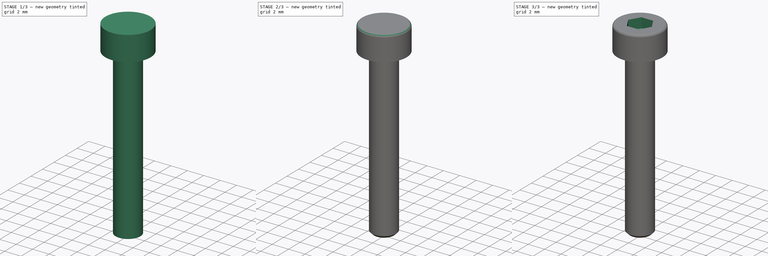
[diagram: build sequence overview — one tinted view per stage of 3, left to right]
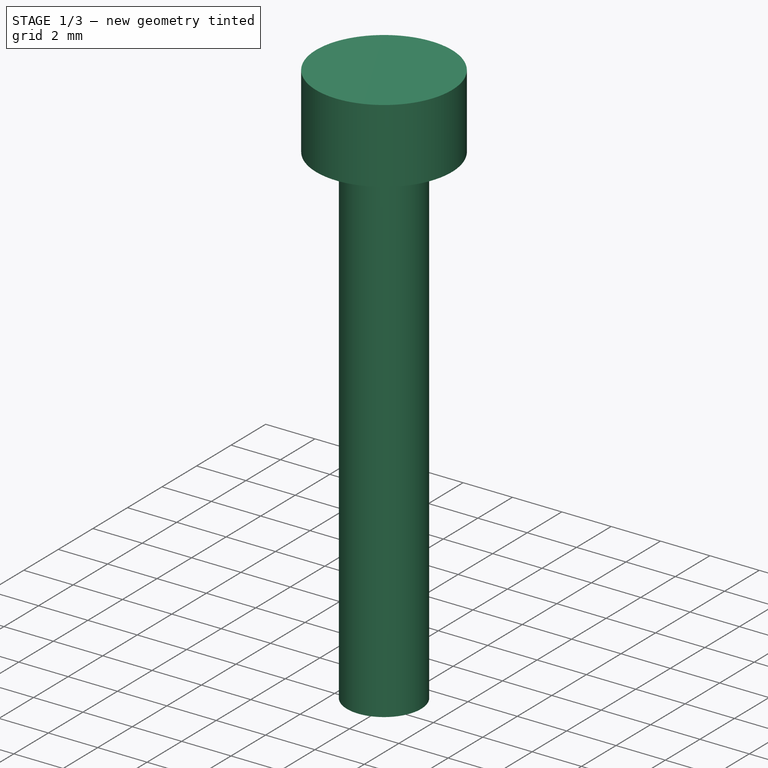
[diagram: stage 1 of 3 — iso view after this stage's code; geometry added in this stage tinted green]
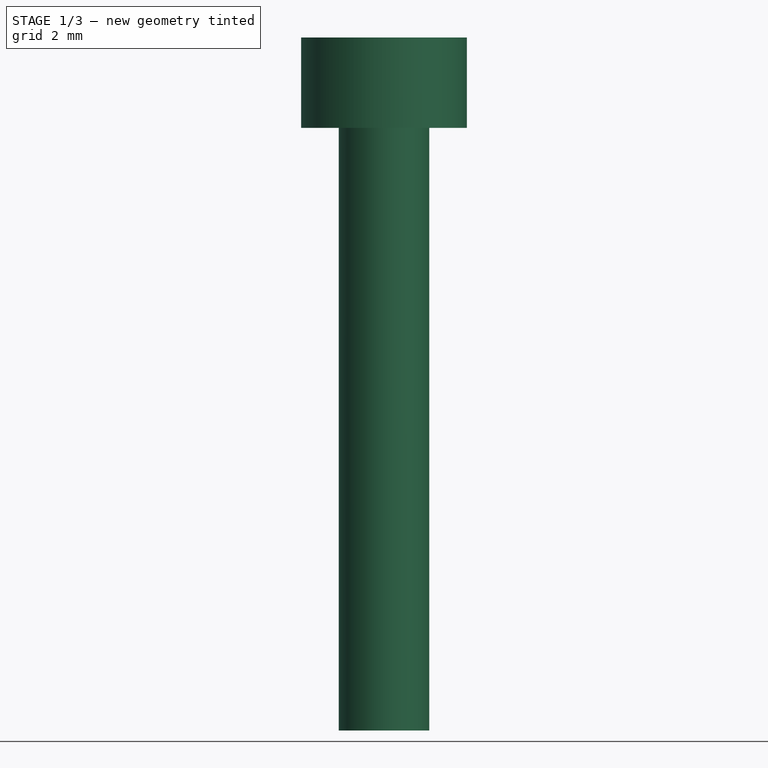
[diagram: stage 1 of 3 — front view after this stage's code; geometry added in this stage tinted green]
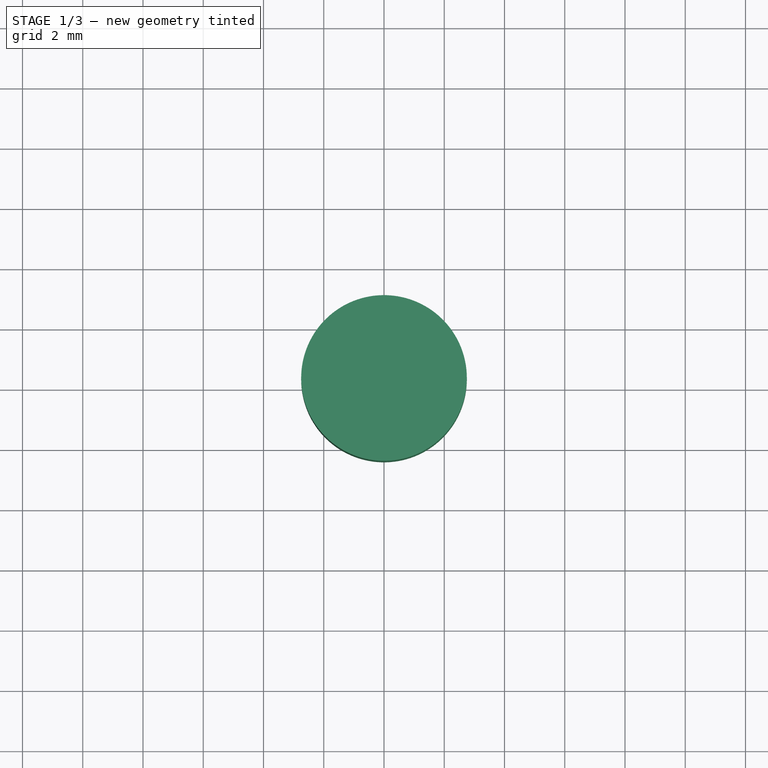
[diagram: stage 1 of 3 — top view after this stage's code; geometry added in this stage tinted green]
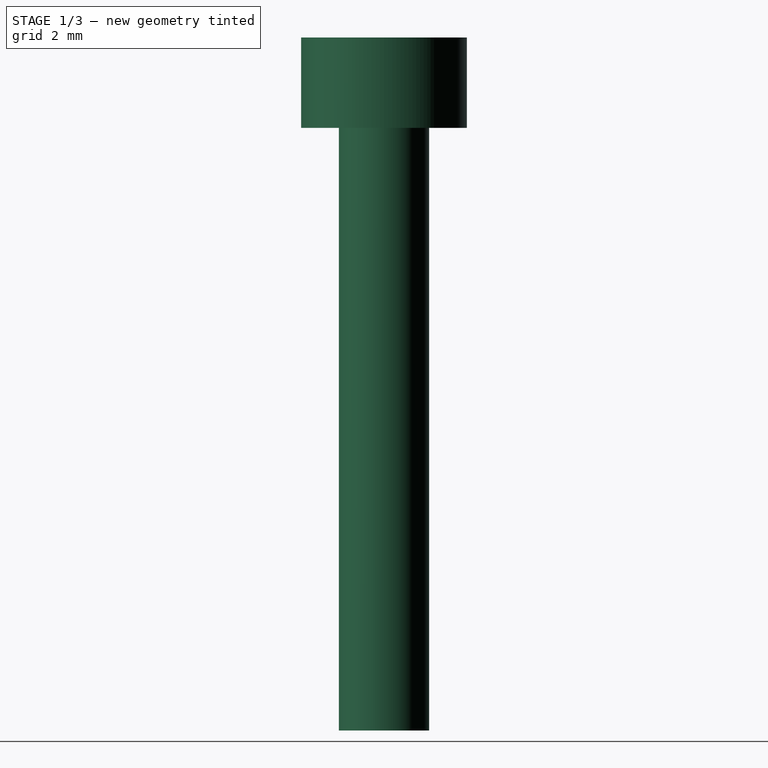
[diagram: stage 1 of 3 — right view after this stage's code; geometry added in this stage tinted green]
FCSTD DOCUMENT  (FreeCAD 0.14R3310 (Git))
Label: 70. TORNILLO METRICA 3 X 20
License: CC-BY 3.0
LicenseURL: http://creativecommons.org/licenses/by/3.0/
objects: Sketcher::SketchObject×3, PartDesign::Pad×2, PartDesign::Fillet×2, PartDesign::Chamfer×2, PartDesign::Pocket×1
note: 13 computed .brp shape members not serialized (recipe doc carries the construction recipe); baked Part::Feature solids carry a one-line shape summary decoded from their .brp

FEATURE [Sketcher::SketchObject] Sketch
  sketch-geometry (1):
    g0: Circle CenterX=0 CenterY=0 CenterZ=0 NormalX=0 NormalY=0 NormalZ=1 Radius=1.5
  constraints (2):
    c: Coincident(g0,g-1)
    c: Radius(g0) = 1.5
FEATURE [PartDesign::Pad] Pad
  Length = 20
  Length2 = 100
  Sketch = -> Sketch
  Type = 0
FEATURE [Sketcher::SketchObject] Sketch001
  Placement = pos=(0,0,20) rot=(0,0,1;0rad)
  Support = -> Pad [Face3]
  sketch-geometry (1):
    g0: Circle CenterX=0 CenterY=0 CenterZ=0 NormalX=0 NormalY=0 NormalZ=1 Radius=2.75
  constraints (2):
    c: Coincident(g0,g-1)
    c: Radius(g0) = 2.75
FEATURE [PartDesign::Pad] Pad001
  Length = 3
  Length2 = 100
  Sketch = -> Sketch001
  Type = 0
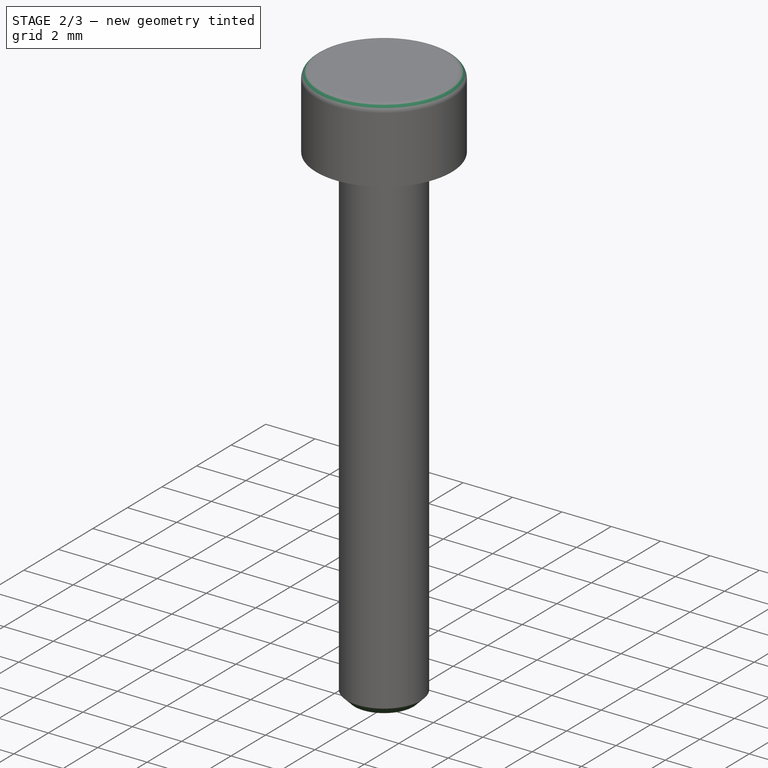
[diagram: stage 2 of 3 — iso view after this stage's code; geometry added in this stage tinted green]
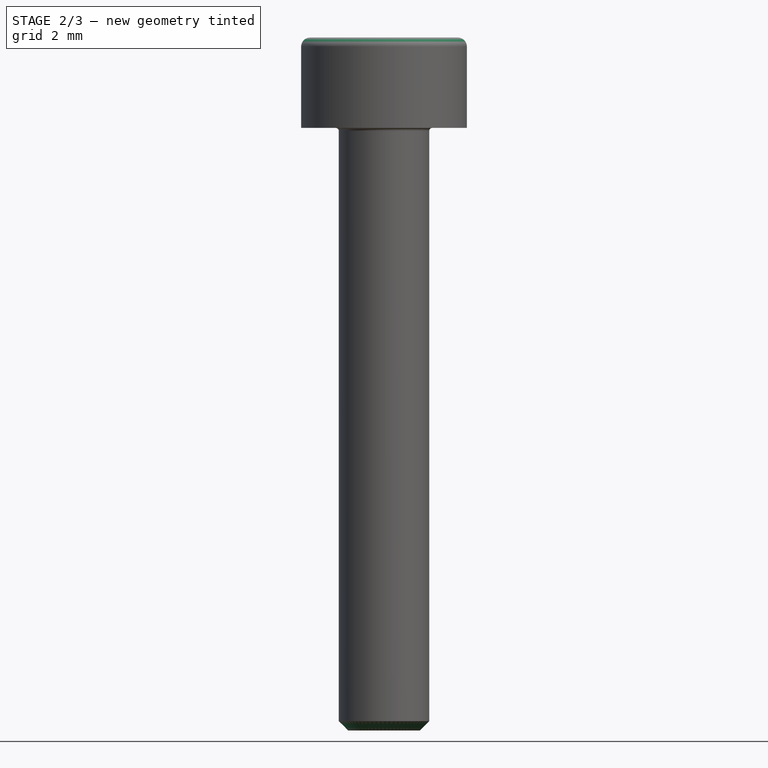
[diagram: stage 2 of 3 — front view after this stage's code; geometry added in this stage tinted green]
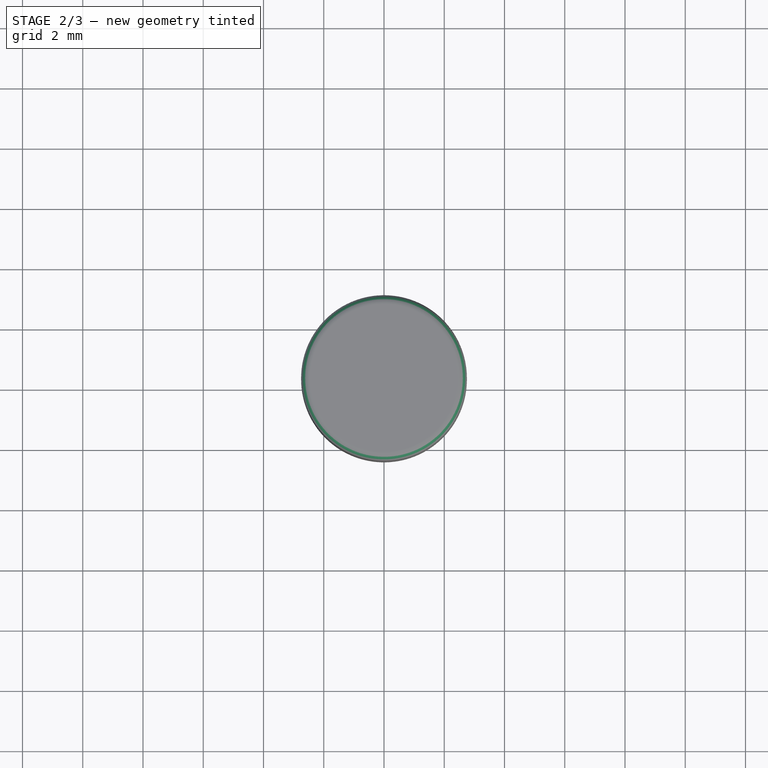
[diagram: stage 2 of 3 — top view after this stage's code; geometry added in this stage tinted green]
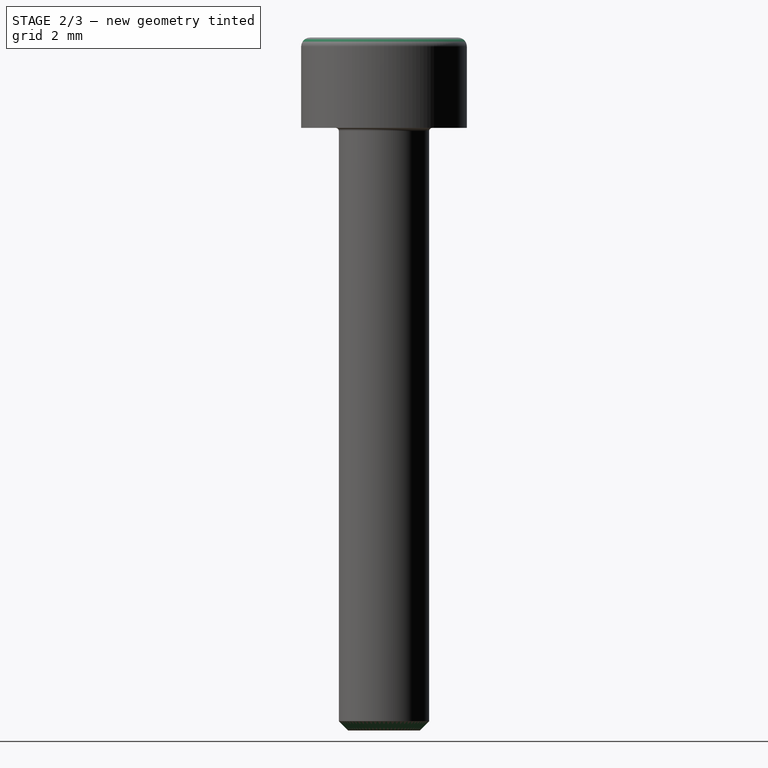
[diagram: stage 2 of 3 — right view after this stage's code; geometry added in this stage tinted green]
FEATURE [PartDesign::Fillet] Fillet
  Base = -> Pad001 [Edge3]
  Radius = 0.1
FEATURE [PartDesign::Fillet] Fillet001
  Base = -> Fillet [Edge8]
  Radius = 0.3
FEATURE [PartDesign::Chamfer] Chamfer
  Base = -> Fillet001 [Edge10]
  Size = 0.31
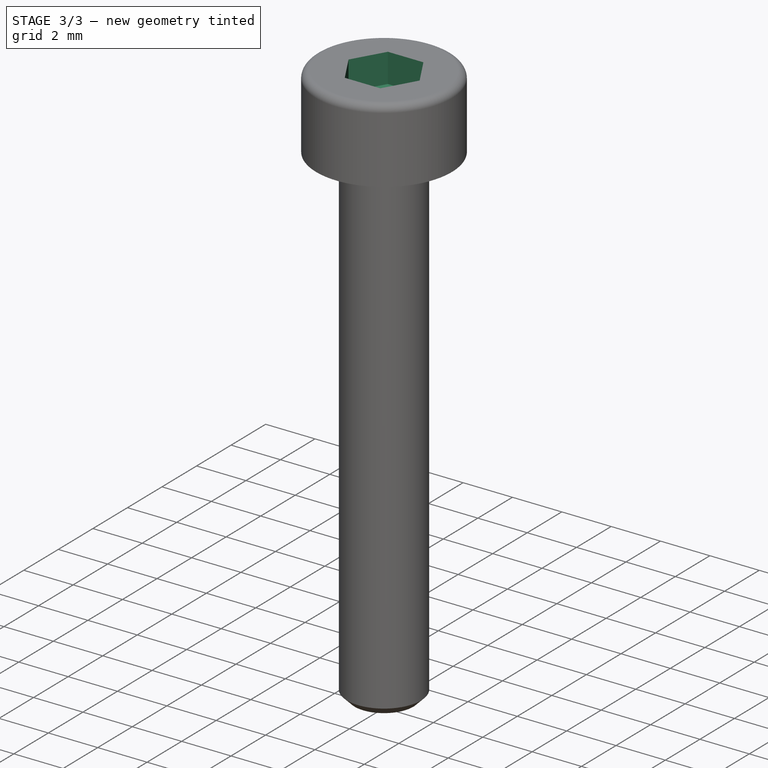
[diagram: stage 3 of 3 — iso view after this stage's code; geometry added in this stage tinted green]
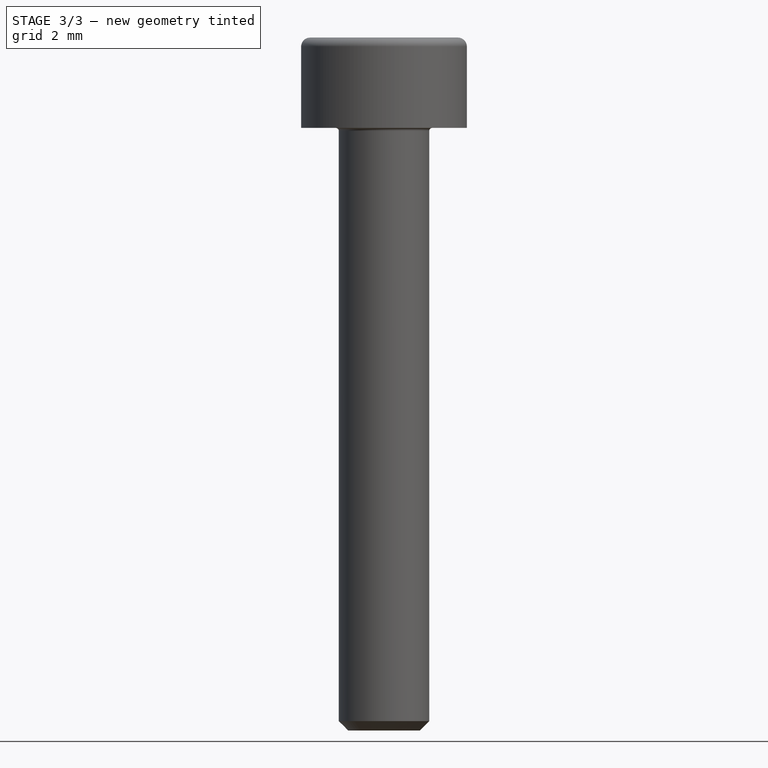
[diagram: stage 3 of 3 — front view after this stage's code; geometry added in this stage tinted green]
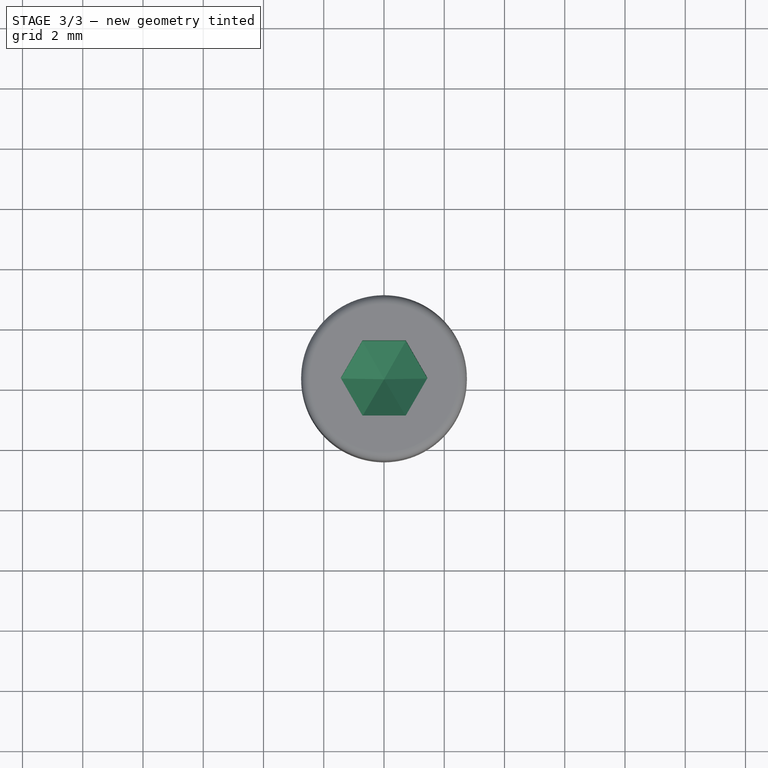
[diagram: stage 3 of 3 — top view after this stage's code; geometry added in this stage tinted green]
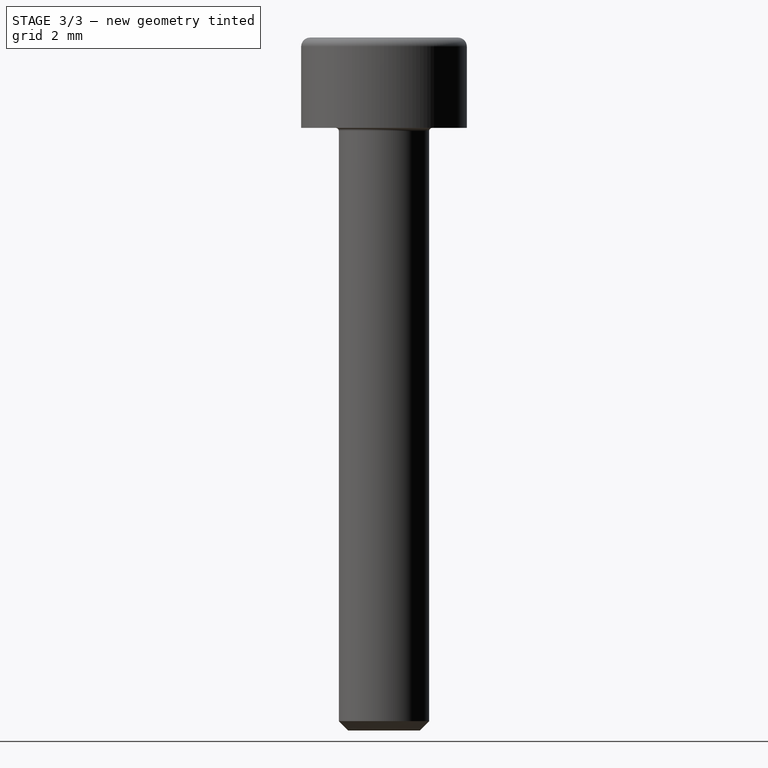
[diagram: stage 3 of 3 — right view after this stage's code; geometry added in this stage tinted green]
FEATURE [Sketcher::SketchObject] Sketch002
  Placement = pos=(0,0,23) rot=(0,0,1;0rad)
  Support = -> Chamfer [Face8]
  sketch-geometry (6):
    g0: LineSegment StartX=-0.716624 StartY=1.24708 StartZ=0 EndX=0.723376 EndY=1.24708 EndZ=0
    g1: LineSegment StartX=0.723376 StartY=1.24708 StartZ=0 EndX=1.44338 EndY=0 EndZ=0
    g2: LineSegment StartX=1.44338 StartY=0 StartZ=0 EndX=0.723376 EndY=-1.24708 EndZ=0
    g3: LineSegment StartX=0.723376 StartY=-1.24708 StartZ=0 EndX=-0.716624 EndY=-1.24708 EndZ=0
    g4: LineSegment StartX=-0.716624 StartY=-1.24708 StartZ=0 EndX=-1.43662 EndY=0 EndZ=0
    g5: LineSegment StartX=-1.43662 StartY=0 StartZ=0 EndX=-0.716624 EndY=1.24708 EndZ=0
  constraints (19):
    c: Horizontal(g0)
    c: Coincident(g0,g1)
    c: Coincident(g1,g2)
    c: Coincident(g2,g3)
    c: Horizontal(g3)
    c: Coincident(g3,g4)
    c: PointOnObject(g4,g-1)
    c: Coincident(g4,g5)
    c: Coincident(g5,g0)
    c: PointOnObject(g1,g-1)
    c: Angle(g2,g3) = 2.0944
    c: Angle(g3,g4) = 2.0944
    c: Equal(g1,g0)
    c: Equal(g0,g4)
    c: Equal(g4,g5)
    c: Equal(g5,g3)
    c: Equal(g3,g2)
    c: Distance(g1) = 1.44
    c: Distance(g-1,g2) = 1.25
FEATURE [PartDesign::Pocket] Pocket
  Length = 2.42
  Sketch = -> Sketch002
  Type = 0
FEATURE [PartDesign::Chamfer] Chamfer001
  Base = -> Pocket [Edge24,Edge26,Edge28,Edge30,Edge20,Edge22]
  Size = 1.24
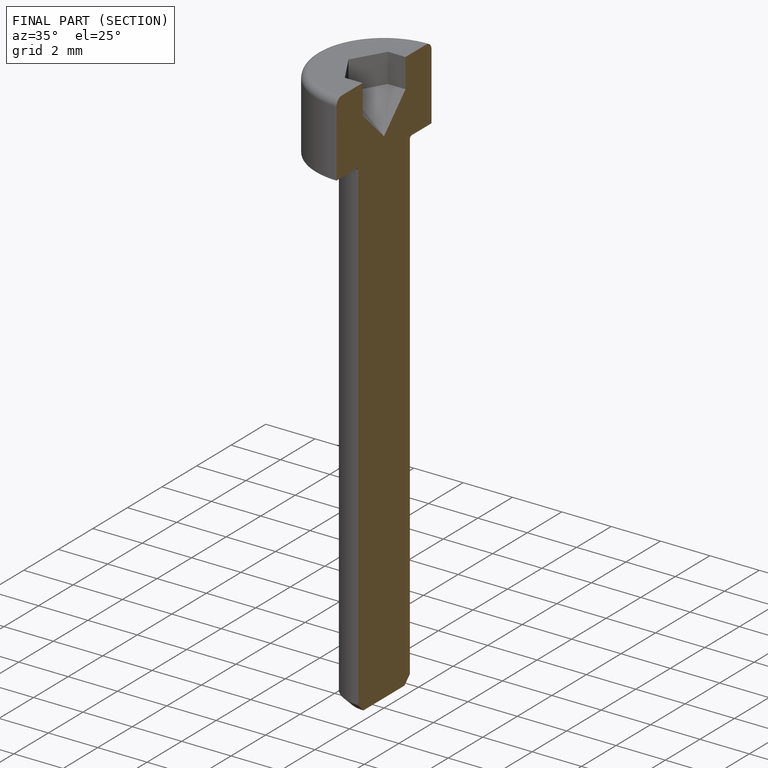
[diagram: finished part — half-section view (interior)]
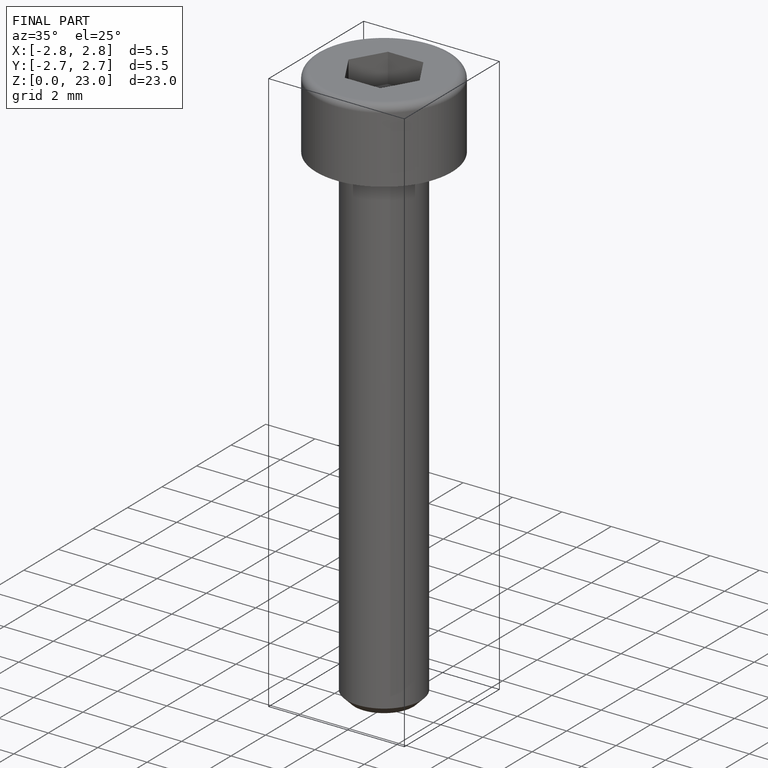
[diagram: finished part — iso view with bounding-box wireframe]
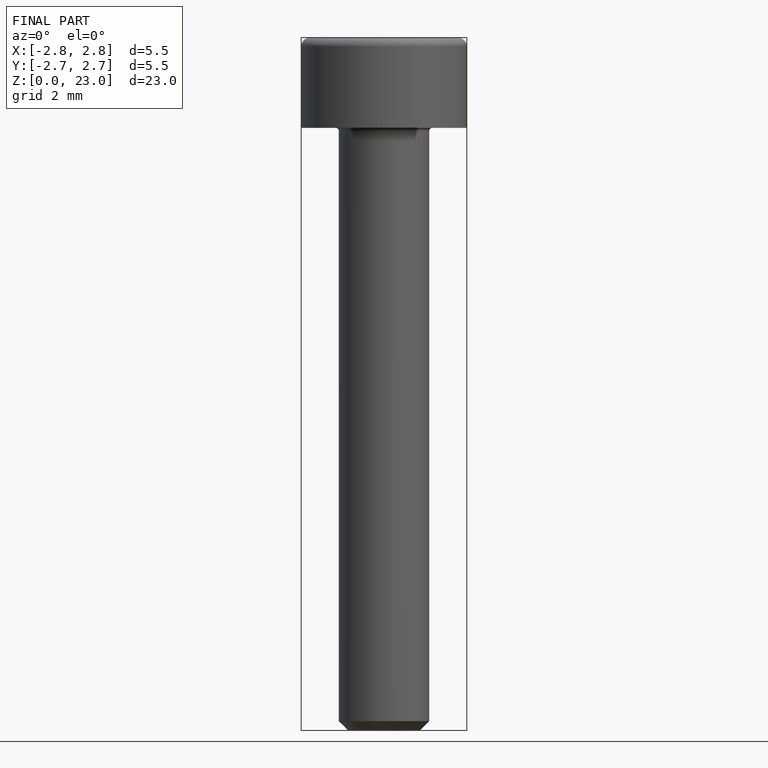
[diagram: finished part — front view with bounding-box wireframe]
